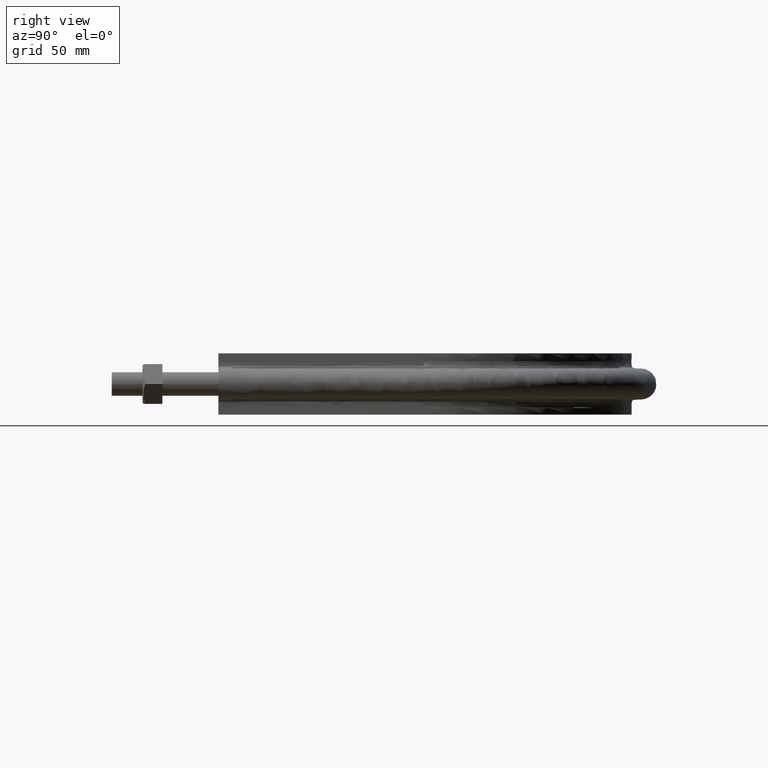
[diagram: clean part render]
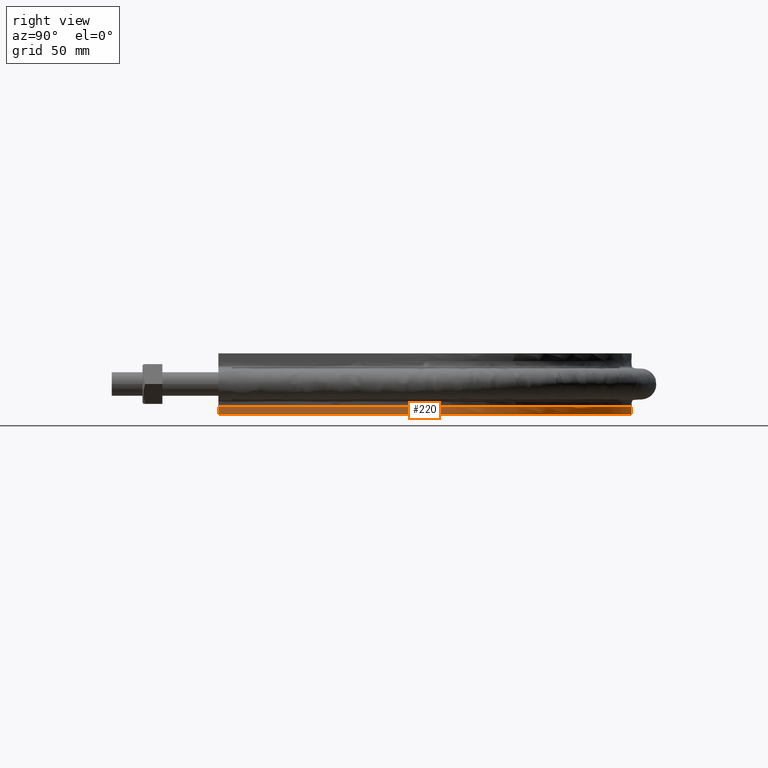
[diagram: same view with one face highlighted and labeled with its STEP entity id]
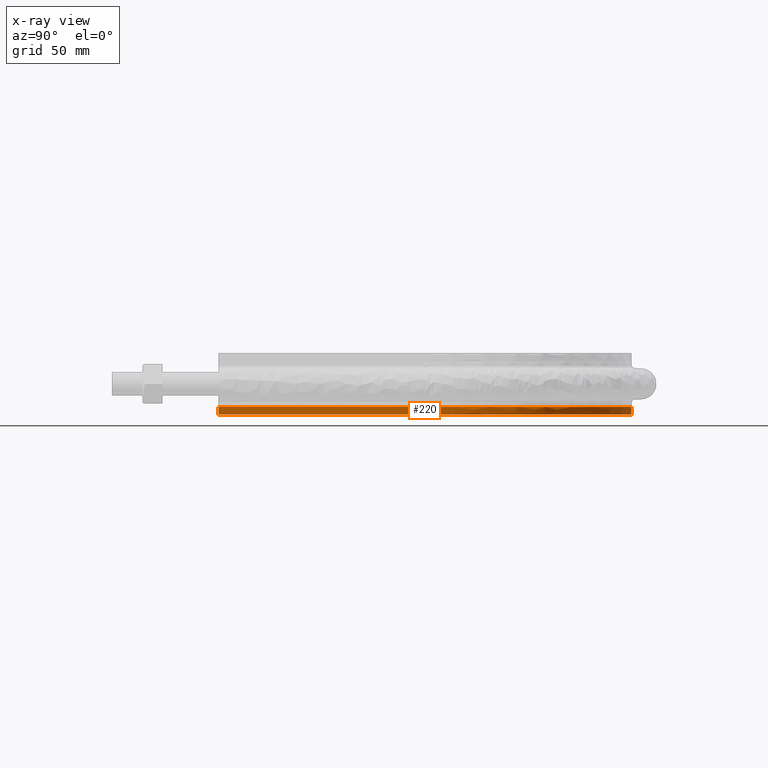
[diagram: x-ray of the same camera — body ghosted, the highlighted face saturated]
A machine part, right view. The second image highlights one B-rep face of the part: STEP entity #220.
The next image is the same camera in x-ray: the body ghosted, the highlighted face saturated — about 0% of this face is hidden behind the body in this view.
In plain terms, the highlighted face is a SurfaceOfExtrusion surface.
Its self-contained STEP definition (entity closure, byte-faithful):
#220 = ADVANCED_FACE( '', ( #262 ), #263, .T. );
#262 = FACE_OUTER_BOUND( '', #363, .T. );
#263 = SURFACE_OF_LINEAR_EXTRUSION( '', #364, #365 );
#363 = EDGE_LOOP( '', ( #1476, #1477, #1478, #1479 ) );
#364 = B_SPLINE_CURVE_WITH_KNOTS( '', 3, ( #1480, #1481, #1482, #1483, #1484, #1485, #1486, #1487, #1488, #1489, #1490, #1491, #1492, #1493, #1494, #1495, #1496, #1497, #1498, #1499, #1500, #1501, #1502, #1503, #1504, #1505, #1506, #1507, #1508, #1509, #1510, #1511, #1512, #1513, #1514, #1515, #1516, #1517, #1518, #1519, #1520, #1521, #1522, #1523, #1524, #1525, #1526, #1527, #1528, #1529, #1530, #1531, #1532, #1533, #1534, #1535, #1536, #1537, #1538, #1539, #1540, #1541, #1542, #1543, #1544, #1545, #1546, #1547, #1548, #1549, #1550, #1551, #1552, #1553, #1554, #1555, #1556, #1557, #1558, #1559, #1560, #1561, #1562, #1563, #1564, #1565, #1566, #1567, #1568, #1569, #1570, #1571, #1572 ), .UNSPECIFIED., .F., .F., ( 4, 1, 1, 2, 2, 2, 2, 2, 2, 2, 2, 2, 2, 2, 2, 2, 2, 2, 2, 2, 2, 2, 2, 2, 2, 2, 2, 2, 2, 2, 2, 2, 2, 2, 2, 2, 2, 2, 2, 2, 2, 2, 2, 2, 2, 2, 1, 4 ), ( 0.000000000000000, 0.125000000000002, 0.187500000000003, 0.191406250000003, 0.195312500000003, 0.203125000000002, 0.218750000000003, 0.250000000000003, 0.257812500000003, 0.265625000000003, 0.281250000000002, 0.312500000000002, 0.328125000000002, 0.343750000000002, 0.375000000000001, 0.390625000000001, 0.398437500000001, 0.406250000000001, 0.437500000000001, 0.453125000000001, 0.460937500000000, 0.468750000000000, 0.500000000000000, 0.515625000000000, 0.523437500000000, 0.531250000000000, 0.562500000000000, 0.578124999999999, 0.585937499999999, 0.593749999999999, 0.624999999999999, 0.656249999999999, 0.664062499999999, 0.671874999999999, 0.687499999999998, 0.718749999999998, 0.722656249999998, 0.726562499999998, 0.734374999999998, 0.749999999999998, 0.781249999999997, 0.789062499999997, 0.796874999999997, 0.804687499999997, 0.808593749999997, 0.812499999999996, 0.874999999999998, 1.00000000000000 ), .UNSPECIFIED. );
#365 = VECTOR( '', #1573, 1000.00000000000 );
#1476 = ORIENTED_EDGE( '', *, *, #1834, .T. );
#1477 = ORIENTED_EDGE( '', *, *, #1835, .T. );
#1478 = ORIENTED_EDGE( '', *, *, #1836, .F. );
#1479 = ORIENTED_EDGE( '', *, *, #1837, .F. );
#1480 = CARTESIAN_POINT( '', ( -136.950000000000, 69.5000000000001, -15.0000000000000 ) );
#1481 = CARTESIAN_POINT( '', ( -136.950000000000, 98.1083518142186, -15.0000000000000 ) );
#1482 = CARTESIAN_POINT( '', ( -136.950000000000, 141.020879535546, -15.0000000000000 ) );
#1483 = CARTESIAN_POINT( '', ( -136.950000000000, 184.827418251068, -15.0000000000000 ) );
#1484 = CARTESIAN_POINT( '', ( -136.950000000000, 200.025605152372, -15.0000000000000 ) );
#1485 = CARTESIAN_POINT( '', ( -136.950000000000, 201.813627140760, -15.0000000000000 ) );
#1486 = CARTESIAN_POINT( '', ( -136.951346114390, 202.707775042567, -15.0000000000000 ) );
#1487 = CARTESIAN_POINT( '', ( -136.920609614582, 205.386681945512, -15.0000000000000 ) );
#1488 = CARTESIAN_POINT( '', ( -136.864816667886, 207.169029468828, -15.0000000000000 ) );
#1489 = CARTESIAN_POINT( '', ( -136.593146380454, 212.505464995944, -15.0000000000000 ) );
#1490 = CARTESIAN_POINT( '', ( -136.273189661635, 216.048967525582, -15.0000000000000 ) );
#1491 = CARTESIAN_POINT( '', ( -134.901802697672, 226.637621477265, -15.0000000000000 ) );
#1492 = CARTESIAN_POINT( '', ( -133.442512350631, 233.641291170172, -15.0000000000000 ) );
#1493 = CARTESIAN_POINT( '', ( -130.901383601594, 242.322953634697, -15.0000000000000 ) );
#1494 = CARTESIAN_POINT( '', ( -130.357015832177, 244.055610275365, -15.0000000000000 ) );
#1495 = CARTESIAN_POINT( '', ( -129.193847954833, 247.513353357775, -15.0000000000000 ) );
#1496 = CARTESIAN_POINT( '', ( -128.573476846170, 249.242131151953, -15.0000000000000 ) );
#1497 = CARTESIAN_POINT( '', ( -126.618174555290, 254.362723165805, -15.0000000000000 ) );
#1498 = CARTESIAN_POINT( '', ( -125.184490197968, 257.702984774707, -15.0000000000000 ) );
#1499 = CARTESIAN_POINT( '', ( -120.505328593638, 267.510336023068, -15.0000000000000 ) );
#1500 = CARTESIAN_POINT( '', ( -116.886061102882, 273.766429658881, -15.0000000000000 ) );
#1501 = CARTESIAN_POINT( '', ( -110.711856714430, 282.729863608688, -15.0000000000000 ) );
#1502 = CARTESIAN_POINT( '', ( -108.528201325971, 285.647880339849, -15.0000000000000 ) );
#1503 = CARTESIAN_POINT( '', ( -103.904407759561, 291.334716161009, -15.0000000000000 ) );
#1504 = CARTESIAN_POINT( '', ( -101.494535344133, 294.066402872892, -15.0000000000000 ) );
#1505 = CARTESIAN_POINT( '', ( -93.9768857717446, 301.932991567950, -15.0000000000000 ) );
#1506 = CARTESIAN_POINT( '', ( -88.5810092968209, 306.739345713163, -15.0000000000000 ) );
#1507 = CARTESIAN_POINT( '', ( -79.9242816112247, 313.306932196036, -15.0000000000000 ) );
#1508 = CARTESIAN_POINT( '', ( -76.9444034133837, 315.388585548725, -15.0000000000000 ) );
#1509 = CARTESIAN_POINT( '', ( -72.3295994596727, 318.345723108325, -15.0000000000000 ) );
#1510 = CARTESIAN_POINT( '', ( -70.7649027135216, 319.304967513353, -15.0000000000000 ) );
#1511 = CARTESIAN_POINT( '', ( -67.6140063459477, 321.151291429898, -15.0000000000000 ) );
#1512 = CARTESIAN_POINT( '', ( -66.0248395654166, 322.040393152112, -15.0000000000000 ) );
#1513 = CARTESIAN_POINT( '', ( -58.0112237793678, 326.317614365294, -15.0000000000000 ) );
#1514 = CARTESIAN_POINT( '', ( -51.3838695117621, 329.201965048637, -15.0000000000000 ) );
#1515 = CARTESIAN_POINT( '', ( -41.1199306990064, 332.726783518546, -15.0000000000000 ) );
#1516 = CARTESIAN_POINT( '', ( -37.6449536795551, 333.768486983704, -15.0000000000000 ) );
#1517 = CARTESIAN_POINT( '', ( -32.3508572250080, 335.128370680882, -15.0000000000000 ) );
#1518 = CARTESIAN_POINT( '', ( -30.5711219683573, 335.548134877370, -15.0000000000000 ) );
#1519 = CARTESIAN_POINT( '', ( -26.9898806015859, 336.317593884026, -15.0000000000000 ) );
#1520 = CARTESIAN_POINT( '', ( -25.1975634552110, 336.665375332185, -15.0000000000000 ) );
#1521 = CARTESIAN_POINT( '', ( -16.2276412077899, 338.222717729931, -15.0000000000000 ) );
#1522 = CARTESIAN_POINT( '', ( -9.02523440856736, 338.892110978601, -15.0000000000000 ) );
#1523 = CARTESIAN_POINT( '', ( 1.81786937464440, 339.036051739121, -15.0000000000000 ) );
#1524 = CARTESIAN_POINT( '', ( 5.43888442947024, 338.939261125259, -15.0000000000000 ) );
#1525 = CARTESIAN_POINT( '', ( 10.8804397715058, 338.575567070277, -15.0000000000000 ) );
#1526 = CARTESIAN_POINT( '', ( 12.6959650568691, 338.417887683017, -15.0000000000000 ) );
#1527 = CARTESIAN_POINT( '', ( 16.3304010621810, 338.028795956680, -15.0000000000000 ) );
#1528 = CARTESIAN_POINT( '', ( 18.1509778757328, 337.796964222104, -15.0000000000000 ) );
#1529 = CARTESIAN_POINT( '', ( 27.1816143256275, 336.463826032725, -15.0000000000000 ) );
#1530 = CARTESIAN_POINT( '', ( 34.2390508622090, 334.839668956545, -15.0000000000000 ) );
#1531 = CARTESIAN_POINT( '', ( 44.5810778790186, 331.588595998648, -15.0000000000000 ) );
#1532 = CARTESIAN_POINT( '', ( 47.9874716560260, 330.368228980460, -15.0000000000000 ) );
#1533 = CARTESIAN_POINT( '', ( 53.0340989443394, 328.327522487613, -15.0000000000000 ) );
#1534 = CARTESIAN_POINT( '', ( 54.7057757971050, 327.612133002601, -15.0000000000000 ) );
#1535 = CARTESIAN_POINT( '', ( 58.0278931759406, 326.110472498891, -15.0000000000000 ) );
#1536 = CARTESIAN_POINT( '', ( 59.6804492387648, 325.323156348271, -15.0000000000000 ) );
#1537 = CARTESIAN_POINT( '', ( 67.8662269615211, 321.218943105620, -15.0000000000000 ) );
#1538 = CARTESIAN_POINT( '', ( 74.0672509269300, 317.457093171529, -15.0000000000000 ) );
#1539 = CARTESIAN_POINT( '', ( 85.8066697855656, 309.021264559786, -15.0000000000000 ) );
#1540 = CARTESIAN_POINT( '', ( 91.3450708111379, 304.347294323490, -15.0000000000000 ) );
#1541 = CARTESIAN_POINT( '', ( 97.8308624293475, 297.902999344751, -15.0000000000000 ) );
#1542 = CARTESIAN_POINT( '', ( 99.1063522438762, 296.583042958306, -15.0000000000000 ) );
#1543 = CARTESIAN_POINT( '', ( 101.590244963731, 293.906741637720, -15.0000000000000 ) );
#1544 = CARTESIAN_POINT( '', ( 102.801672903783, 292.547491271698, -15.0000000000000 ) );
#1545 = CARTESIAN_POINT( '', ( 106.346254323220, 288.407722078790, -15.0000000000000 ) );
#1546 = CARTESIAN_POINT( '', ( 108.589893323643, 285.565315081670, -15.0000000000000 ) );
#1547 = CARTESIAN_POINT( '', ( 114.970214089517, 276.795700236809, -15.0000000000000 ) );
#1548 = CARTESIAN_POINT( '', ( 118.759288976830, 270.628165305693, -15.0000000000000 ) );
#1549 = CARTESIAN_POINT( '', ( 122.482049801510, 263.316381079695, -15.0000000000000 ) );
#1550 = CARTESIAN_POINT( '', ( 122.888127373353, 262.498732064797, -15.0000000000000 ) );
#1551 = CARTESIAN_POINT( '', ( 123.684984798984, 260.852857558546, -15.0000000000000 ) );
#1552 = CARTESIAN_POINT( '', ( 124.076188679038, 260.023697389435, -15.0000000000000 ) );
#1553 = CARTESIAN_POINT( '', ( 125.223076035006, 257.527782870249, -15.0000000000000 ) );
#1554 = CARTESIAN_POINT( '', ( 125.951536386374, 255.853956327217, -15.0000000000000 ) );
#1555 = CARTESIAN_POINT( '', ( 128.029666807743, 250.803138776699, -15.0000000000000 ) );
#1556 = CARTESIAN_POINT( '', ( 129.272445179675, 247.396908032732, -15.0000000000000 ) );
#1557 = CARTESIAN_POINT( '', ( 132.586786070952, 237.064969568913, -15.0000000000000 ) );
#1558 = CARTESIAN_POINT( '', ( 134.247821790206, 230.026964115281, -15.0000000000000 ) );
#1559 = CARTESIAN_POINT( '', ( 135.630952375180, 221.039845429982, -15.0000000000000 ) );
#1560 = CARTESIAN_POINT( '', ( 135.872641992840, 219.232864972872, -15.0000000000000 ) );
#1561 = CARTESIAN_POINT( '', ( 136.284803757172, 215.599422844282, -15.0000000000000 ) );
#1562 = CARTESIAN_POINT( '', ( 136.455153129533, 213.772516640443, -15.0000000000000 ) );
#1563 = CARTESIAN_POINT( '', ( 136.721567786733, 210.123756924611, -15.0000000000000 ) );
#1564 = CARTESIAN_POINT( '', ( 136.818027802696, 208.298840221395, -15.0000000000000 ) );
#1565 = CARTESIAN_POINT( '', ( 136.907499245267, 205.560658472589, -15.0000000000000 ) );
#1566 = CARTESIAN_POINT( '', ( 136.928116262671, 204.647796719939, -15.0000000000000 ) );
#1567 = CARTESIAN_POINT( '', ( 136.950875956315, 202.821803321072, -15.0000000000000 ) );
#1568 = CARTESIAN_POINT( '', ( 136.950000000000, 201.908627575340, -15.0000000000000 ) );
#1569 = CARTESIAN_POINT( '', ( 136.950000000000, 186.384857445817, -15.0000000000000 ) );
#1570 = CARTESIAN_POINT( '', ( 136.950000000000, 142.553035903636, -15.0000000000000 ) );
#1571 = CARTESIAN_POINT( '', ( 136.950000000000, 98.7212143614546, -15.0000000000000 ) );
#1572 = CARTESIAN_POINT( '', ( 136.950000000000, 69.5000000000000, -15.0000000000000 ) );
#1573 = DIRECTION( '', ( -7.49830360911069E-032, -3.06151588455594E-016, -1.00000000000000 ) );
#1834 = EDGE_CURVE( '', #1910, #1911, #1912, .T. );
#1835 = EDGE_CURVE( '', #1911, #1913, #1914, .F. );
#1836 = EDGE_CURVE( '', #1915, #1913, #1916, .T. );
#1837 = EDGE_CURVE( '', #1910, #1915, #1917, .F. );
#1910 = VERTEX_POINT( '', #2160 );
#1911 = VERTEX_POINT( '', #2161 );
#1912 = B_SPLINE_CURVE_WITH_KNOTS( '', 3, ( #2162, #2163, #2164, #2165, #2166, #2167, #2168, #2169, #2170, #2171, #2172, #2173, #2174, #2175, #2176, #2177, #2178, #2179, #2180, #2181, #2182, #2183, #2184, #2185, #2186, #2187, #2188, #2189, #2190, #2191, #2192, #2193, #2194, #2195, #2196, #2197, #2198, #2199, #2200, #2201, #2202, #2203, #2204, #2205, #2206, #2207, #2208, #2209, #2210, #2211, #2212, #2213, #2214, #2215, #2216, #2217, #2218, #2219, #2220, #2221, #2222, #2223, #2224, #2225, #2226, #2227, #2228, #2229, #2230, #2231, #2232, #2233, #2234, #2235, #2236, #2237, #2238, #2239, #2240, #2241, #2242, #2243, #2244, #2245, #2246, #2247, #2248, #2249, #2250, #2251, #2252, #2253, #2254 ), .UNSPECIFIED., .F., .F., ( 4, 1, 1, 2, 2, 2, 2, 2, 2, 2, 2, 2, 2, 2, 2, 2, 2, 2, 2, 2, 2, 2, 2, 2, 2, 2, 2, 2, 2, 2, 2, 2, 2, 2, 2, 2, 2, 2, 2, 2, 2, 2, 2, 2, 2, 2, 1, 4 ), ( 0.000000000000000, 0.125000000000002, 0.187500000000003, 0.191406250000003, 0.195312500000003, 0.203125000000002, 0.218750000000003, 0.250000000000003, 0.257812500000003, 0.265625000000003, 0.281250000000002, 0.312500000000002, 0.328125000000002, 0.343750000000002, 0.375000000000001, 0.390625000000001, 0.398437500000001, 0.406250000000001, 0.437500000000001, 0.453125000000001, 0.460937500000000, 0.468750000000000, 0.500000000000000, 0.515625000000000, 0.523437500000000, 0.531250000000000, 0.562500000000000, 0.578124999999999, 0.585937499999999, 0.593749999999999, 0.624999999999999, 0.656249999999999, 0.664062499999999, 0.671874999999999, 0.687499999999998, 0.718749999999998, 0.722656249999998, 0.726562499999998, 0.734374999999998, 0.749999999999998, 0.781249999999997, 0.789062499999997, 0.796874999999997, 0.804687499999997, 0.808593749999997, 0.812499999999996, 0.874999999999998, 1.00000000000000 ), .UNSPECIFIED. );
#1913 = VERTEX_POINT( '', #2255 );
#1914 = LINE( '', #2256, #2257 );
#1915 = VERTEX_POINT( '', #2258 );
#1916 = B_SPLINE_CURVE_WITH_KNOTS( '', 3, ( #2259, #2260, #2261, #2262, #2263, #2264, #2265, #2266, #2267, #2268, #2269, #2270, #2271, #2272, #2273, #2274, #2275, #2276, #2277, #2278, #2279, #2280, #2281, #2282, #2283, #2284, #2285, #2286, #2287, #2288, #2289, #2290, #2291, #2292, #2293, #2294, #2295, #2296, #2297, #2298, #2299, #2300, #2301, #2302, #2303, #2304, #2305, #2306, #2307, #2308, #2309, #2310, #2311, #2312, #2313, #2314, #2315, #2316, #2317, #2318, #2319, #2320, #2321, #2322, #2323, #2324, #2325, #2326, #2327, #2328, #2329, #2330, #2331, #2332, #2333, #2334, #2335, #2336, #2337, #2338, #2339, #2340, #2341, #2342, #2343, #2344, #2345, #2346, #2347, #2348, #2349, #2350, #2351, #2352, #2353, #2354, #2355, #2356, #2357, #2358, #2359, #2360, #2361, #2362, #2363, #2364, #2365 ), .UNSPECIFIED., .F., .F., ( 4, 1, 2, 2, 2, 2, 2, 2, 2, 2, 2, 2, 2, 2, 2, 2, 2, 2, 2, 2, 2, 2, 2, 2, 2, 2, 2, 2, 2, 2, 2, 2, 2, 2, 2, 1, 2, 2, 2, 2, 2, 2, 2, 2, 2, 2, 2, 2, 2, 2, 2, 2, 2, 1, 4 ), ( 1.38777878078145E-017, 0.0874256844655920, 0.131138526698388, 0.133870579337938, 0.136602631977487, 0.142066737256587, 0.152994947814785, 0.174851368931183, 0.180315474210282, 0.183047526849832, 0.185779579489381, 0.196707790047579, 0.218564211163976, 0.229492421722174, 0.232224474361723, 0.234956527001273, 0.240420632280372, 0.262277053396767, 0.273205263954965, 0.275937316594514, 0.278669369234064, 0.284133474513163, 0.305989895629558, 0.316918106187756, 0.322382211466855, 0.325114264106404, 0.327846316745954, 0.349702737862350, 0.360630948420547, 0.366095053699646, 0.368827106339196, 0.371559158978745, 0.393415580095141, 0.415272001211536, 0.418004053851086, 0.420736106490635, 0.426200211769734, 0.437128422327932, 0.458984843444328, 0.461716896083877, 0.464448948723426, 0.469913054002525, 0.480841264560722, 0.502697685677117, 0.508161790956216, 0.513625896235315, 0.524554106793512, 0.546410527909907, 0.551874633189006, 0.557338738468105, 0.562802843747204, 0.565534896386753, 0.568266949026303, 0.611979791259093, 0.699405475724673 ), .UNSPECIFIED. );
#1917 = LINE( '', #2366, #2367 );
#2160 = CARTESIAN_POINT( '', ( -136.950000000000, 69.5000000000001, -15.0000000000000 ) );
#2161 = CARTESIAN_POINT( '', ( 136.950000000000, 69.5000000000001, -15.0000000000000 ) );
#2162 = CARTESIAN_POINT( '', ( -136.950000000000, 69.5000000000001, -15.0000000000000 ) );
#2163 = CARTESIAN_POINT( '', ( -136.950000000000, 98.1083518142186, -15.0000000000000 ) );
#2164 = CARTESIAN_POINT( '', ( -136.950000000000, 141.020879535546, -15.0000000000000 ) );
#2165 = CARTESIAN_POINT( '', ( -136.950000000000, 184.827418251068, -15.0000000000000 ) );
#2166 = CARTESIAN_POINT( '', ( -136.950000000000, 200.025605152372, -15.0000000000000 ) );
#2167 = CARTESIAN_POINT( '', ( -136.950000000000, 201.813627140760, -15.0000000000000 ) );
#2168 = CARTESIAN_POINT( '', ( -136.951346114390, 202.707775042567, -15.0000000000000 ) );
#2169 = CARTESIAN_POINT( '', ( -136.920609614582, 205.386681945512, -15.0000000000000 ) );
#2170 = CARTESIAN_POINT( '', ( -136.864816667886, 207.169029468828, -15.0000000000000 ) );
#2171 = CARTESIAN_POINT( '', ( -136.593146380454, 212.505464995944, -15.0000000000000 ) );
#2172 = CARTESIAN_POINT( '', ( -136.273189661635, 216.048967525582, -15.0000000000000 ) );
#2173 = CARTESIAN_POINT( '', ( -134.901802697672, 226.637621477265, -15.0000000000000 ) );
#2174 = CARTESIAN_POINT( '', ( -133.442512350631, 233.641291170172, -15.0000000000000 ) );
#2175 = CARTESIAN_POINT( '', ( -130.901383601594, 242.322953634697, -15.0000000000000 ) );
#2176 = CARTESIAN_POINT( '', ( -130.357015832177, 244.055610275365, -15.0000000000000 ) );
#2177 = CARTESIAN_POINT( '', ( -129.193847954833, 247.513353357775, -15.0000000000000 ) );
#2178 = CARTESIAN_POINT( '', ( -128.573476846170, 249.242131151953, -15.0000000000000 ) );
#2179 = CARTESIAN_POINT( '', ( -126.618174555290, 254.362723165805, -15.0000000000000 ) );
#2180 = CARTESIAN_POINT( '', ( -125.184490197968, 257.702984774707, -15.0000000000000 ) );
#2181 = CARTESIAN_POINT( '', ( -120.505328593638, 267.510336023068, -15.0000000000000 ) );
#2182 = CARTESIAN_POINT( '', ( -116.886061102882, 273.766429658881, -15.0000000000000 ) );
#2183 = CARTESIAN_POINT( '', ( -110.711856714430, 282.729863608688, -15.0000000000000 ) );
#2184 = CARTESIAN_POINT( '', ( -108.528201325971, 285.647880339849, -15.0000000000000 ) );
#2185 = CARTESIAN_POINT( '', ( -103.904407759561, 291.334716161009, -15.0000000000000 ) );
#2186 = CARTESIAN_POINT( '', ( -101.494535344133, 294.066402872892, -15.0000000000000 ) );
#2187 = CARTESIAN_POINT( '', ( -93.9768857717446, 301.932991567950, -15.0000000000000 ) );
#2188 = CARTESIAN_POINT( '', ( -88.5810092968209, 306.739345713163, -15.0000000000000 ) );
#2189 = CARTESIAN_POINT( '', ( -79.9242816112247, 313.306932196036, -15.0000000000000 ) );
#2190 = CARTESIAN_POINT( '', ( -76.9444034133837, 315.388585548725, -15.0000000000000 ) );
#2191 = CARTESIAN_POINT( '', ( -72.3295994596727, 318.345723108325, -15.0000000000000 ) );
#2192 = CARTESIAN_POINT( '', ( -70.7649027135216, 319.304967513353, -15.0000000000000 ) );
#2193 = CARTESIAN_POINT( '', ( -67.6140063459477, 321.151291429898, -15.0000000000000 ) );
#2194 = CARTESIAN_POINT( '', ( -66.0248395654166, 322.040393152112, -15.0000000000000 ) );
#2195 = CARTESIAN_POINT( '', ( -58.0112237793678, 326.317614365294, -15.0000000000000 ) );
#2196 = CARTESIAN_POINT( '', ( -51.3838695117621, 329.201965048637, -15.0000000000000 ) );
#2197 = CARTESIAN_POINT( '', ( -41.1199306990064, 332.726783518546, -15.0000000000000 ) );
#2198 = CARTESIAN_POINT( '', ( -37.6449536795551, 333.768486983704, -15.0000000000000 ) );
#2199 = CARTESIAN_POINT( '', ( -32.3508572250080, 335.128370680882, -15.0000000000000 ) );
#2200 = CARTESIAN_POINT( '', ( -30.5711219683573, 335.548134877370, -15.0000000000000 ) );
#2201 = CARTESIAN_POINT( '', ( -26.9898806015859, 336.317593884026, -15.0000000000000 ) );
#2202 = CARTESIAN_POINT( '', ( -25.1975634552110, 336.665375332185, -15.0000000000000 ) );
#2203 = CARTESIAN_POINT( '', ( -16.2276412077899, 338.222717729931, -15.0000000000000 ) );
#2204 = CARTESIAN_POINT( '', ( -9.02523440856736, 338.892110978601, -15.0000000000000 ) );
#2205 = CARTESIAN_POINT( '', ( 1.81786937464440, 339.036051739121, -15.0000000000000 ) );
#2206 = CARTESIAN_POINT( '', ( 5.43888442947024, 338.939261125259, -15.0000000000000 ) );
#2207 = CARTESIAN_POINT( '', ( 10.8804397715058, 338.575567070277, -15.0000000000000 ) );
#2208 = CARTESIAN_POINT( '', ( 12.6959650568691, 338.417887683017, -15.0000000000000 ) );
#2209 = CARTESIAN_POINT( '', ( 16.3304010621810, 338.028795956680, -15.0000000000000 ) );
#2210 = CARTESIAN_POINT( '', ( 18.1509778757328, 337.796964222104, -15.0000000000000 ) );
#2211 = CARTESIAN_POINT( '', ( 27.1816143256275, 336.463826032725, -15.0000000000000 ) );
#2212 = CARTESIAN_POINT( '', ( 34.2390508622090, 334.839668956545, -15.0000000000000 ) );
#2213 = CARTESIAN_POINT( '', ( 44.5810778790186, 331.588595998648, -15.0000000000000 ) );
#2214 = CARTESIAN_POINT( '', ( 47.9874716560260, 330.368228980460, -15.0000000000000 ) );
#2215 = CARTESIAN_POINT( '', ( 53.0340989443394, 328.327522487613, -15.0000000000000 ) );
#2216 = CARTESIAN_POINT( '', ( 54.7057757971050, 327.612133002601, -15.0000000000000 ) );
#2217 = CARTESIAN_POINT( '', ( 58.0278931759406, 326.110472498891, -15.0000000000000 ) );
#2218 = CARTESIAN_POINT( '', ( 59.6804492387648, 325.323156348271, -15.0000000000000 ) );
#2219 = CARTESIAN_POINT( '', ( 67.8662269615211, 321.218943105620, -15.0000000000000 ) );
#2220 = CARTESIAN_POINT( '', ( 74.0672509269300, 317.457093171529, -15.0000000000000 ) );
#2221 = CARTESIAN_POINT( '', ( 85.8066697855656, 309.021264559786, -15.0000000000000 ) );
#2222 = CARTESIAN_POINT( '', ( 91.3450708111379, 304.347294323490, -15.0000000000000 ) );
#2223 = CARTESIAN_POINT( '', ( 97.8308624293475, 297.902999344751, -15.0000000000000 ) );
#2224 = CARTESIAN_POINT( '', ( 99.1063522438762, 296.583042958306, -15.0000000000000 ) );
#2225 = CARTESIAN_POINT( '', ( 101.590244963731, 293.906741637720, -15.0000000000000 ) );
#2226 = CARTESIAN_POINT( '', ( 102.801672903783, 292.547491271698, -15.0000000000000 ) );
#2227 = CARTESIAN_POINT( '', ( 106.346254323220, 288.407722078790, -15.0000000000000 ) );
#2228 = CARTESIAN_POINT( '', ( 108.589893323643, 285.565315081670, -15.0000000000000 ) );
#2229 = CARTESIAN_POINT( '', ( 114.970214089517, 276.795700236809, -15.0000000000000 ) );
#2230 = CARTESIAN_POINT( '', ( 118.759288976830, 270.628165305693, -15.0000000000000 ) );
#2231 = CARTESIAN_POINT( '', ( 122.482049801510, 263.316381079695, -15.0000000000000 ) );
#2232 = CARTESIAN_POINT( '', ( 122.888127373353, 262.498732064797, -15.0000000000000 ) );
#2233 = CARTESIAN_POINT( '', ( 123.684984798984, 260.852857558546, -15.0000000000000 ) );
#2234 = CARTESIAN_POINT( '', ( 124.076188679038, 260.023697389435, -15.0000000000000 ) );
#2235 = CARTESIAN_POINT( '', ( 125.223076035006, 257.527782870249, -15.0000000000000 ) );
#2236 = CARTESIAN_POINT( '', ( 125.951536386374, 255.853956327217, -15.0000000000000 ) );
#2237 = CARTESIAN_POINT( '', ( 128.029666807743, 250.803138776699, -15.0000000000000 ) );
#2238 = CARTESIAN_POINT( '', ( 129.272445179675, 247.396908032732, -15.0000000000000 ) );
#2239 = CARTESIAN_POINT( '', ( 132.586786070952, 237.064969568913, -15.0000000000000 ) );
#2240 = CARTESIAN_POINT( '', ( 134.247821790206, 230.026964115281, -15.0000000000000 ) );
#2241 = CARTESIAN_POINT( '', ( 135.630952375180, 221.039845429982, -15.0000000000000 ) );
#2242 = CARTESIAN_POINT( '', ( 135.872641992840, 219.232864972872, -15.0000000000000 ) );
#2243 = CARTESIAN_POINT( '', ( 136.284803757172, 215.599422844282, -15.0000000000000 ) );
#2244 = CARTESIAN_POINT( '', ( 136.455153129533, 213.772516640443, -15.0000000000000 ) );
#2245 = CARTESIAN_POINT( '', ( 136.721567786733, 210.123756924611, -15.0000000000000 ) );
#2246 = CARTESIAN_POINT( '', ( 136.818027802696, 208.298840221395, -15.0000000000000 ) );
#2247 = CARTESIAN_POINT( '', ( 136.907499245267, 205.560658472589, -15.0000000000000 ) );
#2248 = CARTESIAN_POINT( '', ( 136.928116262671, 204.647796719939, -15.0000000000000 ) );
#2249 = CARTESIAN_POINT( '', ( 136.950875956315, 202.821803321072, -15.0000000000000 ) );
#2250 = CARTESIAN_POINT( '', ( 136.950000000000, 201.908627575340, -15.0000000000000 ) );
#2251 = CARTESIAN_POINT( '', ( 136.950000000000, 186.384857445817, -15.0000000000000 ) );
#2252 = CARTESIAN_POINT( '', ( 136.950000000000, 142.553035903636, -15.0000000000000 ) );
#2253 = CARTESIAN_POINT( '', ( 136.950000000000, 98.7212143614546, -15.0000000000000 ) );
#2254 = CARTESIAN_POINT( '', ( 136.950000000000, 69.5000000000000, -15.0000000000000 ) );
#2255 = CARTESIAN_POINT( '', ( 136.950000000000, 69.5000000000000, -20.0000000000000 ) );
#2256 = CARTESIAN_POINT( '', ( 136.950000000000, 69.5000000000001, 15.0000000000000 ) );
#2257 = VECTOR( '', #2776, 1000.00000000000 );
#2258 = CARTESIAN_POINT( '', ( -136.950000000000, 69.5000000000001, -20.0000000000000 ) );
#2259 = CARTESIAN_POINT( '', ( -136.950000000000, 69.5000000000001, -20.0000000000000 ) );
#2260 = CARTESIAN_POINT( '', ( -136.950000000000, 98.6419002480975, -20.0000000000000 ) );
#2261 = CARTESIAN_POINT( '', ( -136.950000000000, 142.354750620244, -20.0000000000000 ) );
#2262 = CARTESIAN_POINT( '', ( -136.949999999999, 186.067600992390, -20.0000000000000 ) );
#2263 = CARTESIAN_POINT( '', ( -136.950000000000, 201.549235499191, -20.0000000000000 ) );
#2264 = CARTESIAN_POINT( '', ( -136.952005766823, 202.459921105957, -20.0000000000000 ) );
#2265 = CARTESIAN_POINT( '', ( -136.934979206279, 204.281279481060, -20.0000000000000 ) );
#2266 = CARTESIAN_POINT( '', ( -136.916553871832, 205.191952619813, -20.0000000000000 ) );
#2267 = CARTESIAN_POINT( '', ( -136.834753701177, 207.923955849785, -20.0000000000000 ) );
#2268 = CARTESIAN_POINT( '', ( -136.743599783762, 209.741272047872, -20.0000000000000 ) );
#2269 = CARTESIAN_POINT( '', ( -136.363495553162, 215.166484778744, -20.0000000000000 ) );
#2270 = CARTESIAN_POINT( '', ( -135.967488703048, 218.753870458485, -20.0000000000000 ) );
#2271 = CARTESIAN_POINT( '', ( -134.367551969832, 229.431038801510, -20.0000000000000 ) );
#2272 = CARTESIAN_POINT( '', ( -132.750553866293, 236.435595074196, -20.0000000000000 ) );
#2273 = CARTESIAN_POINT( '', ( -130.033489035348, 245.047725779315, -20.0000000000000 ) );
#2274 = CARTESIAN_POINT( '', ( -129.454886141076, 246.762891350759, -20.0000000000000 ) );
#2275 = CARTESIAN_POINT( '', ( -128.533317502651, 249.324567410147, -20.0000000000000 ) );
#2276 = CARTESIAN_POINT( '', ( -128.217212893148, 250.176620027553, -20.0000000000000 ) );
#2277 = CARTESIAN_POINT( '', ( -127.566740219218, 251.876957051046, -20.0000000000000 ) );
#2278 = CARTESIAN_POINT( '', ( -127.232398800355, 252.725180838083, -20.0000000000000 ) );
#2279 = CARTESIAN_POINT( '', ( -125.522807242116, 256.937555990541, -20.0000000000000 ) );
#2280 = CARTESIAN_POINT( '', ( -124.027890382200, 260.231015655090, -20.0000000000000 ) );
#2281 = CARTESIAN_POINT( '', ( -119.177772488663, 269.891903517813, -20.0000000000000 ) );
#2282 = CARTESIAN_POINT( '', ( -115.456951462215, 276.039688790400, -20.0000000000000 ) );
#2283 = CARTESIAN_POINT( '', ( -109.152951019671, 284.827169774977, -20.0000000000000 ) );
#2284 = CARTESIAN_POINT( '', ( -106.930050833053, 287.683299996958, -20.0000000000000 ) );
#2285 = CARTESIAN_POINT( '', ( -103.994442146735, 291.159156375517, -20.0000000000000 ) );
#2286 = CARTESIAN_POINT( '', ( -103.399206220781, 291.849830869776, -20.0000000000000 ) );
#2287 = CARTESIAN_POINT( '', ( -102.198265091276, 293.215468669275, -20.0000000000000 ) );
#2288 = CARTESIAN_POINT( '', ( -101.591920700931, 293.891203542518, -20.0000000000000 ) );
#2289 = CARTESIAN_POINT( '', ( -99.7553846231902, 295.897299082129, -20.0000000000000 ) );
#2290 = CARTESIAN_POINT( '', ( -98.5077032633133, 297.206566629286, -20.0000000000000 ) );
#2291 = CARTESIAN_POINT( '', ( -92.1539858602997, 303.613835991368, -20.0000000000000 ) );
#2292 = CARTESIAN_POINT( '', ( -86.7024715106608, 308.295179626358, -20.0000000000000 ) );
#2293 = CARTESIAN_POINT( '', ( -77.9891669345064, 314.670721620162, -20.0000000000000 ) );
#2294 = CARTESIAN_POINT( '', ( -74.9946413234060, 316.687249879648, -20.0000000000000 ) );
#2295 = CARTESIAN_POINT( '', ( -71.1363767592708, 319.069086719332, -20.0000000000000 ) );
#2296 = CARTESIAN_POINT( '', ( -70.3589796436348, 319.538526390095, -20.0000000000000 ) );
#2297 = CARTESIAN_POINT( '', ( -68.7925101038824, 320.463324926285, -20.0000000000000 ) );
#2298 = CARTESIAN_POINT( '', ( -68.0028416365663, 320.918994503190, -20.0000000000000 ) );
#2299 = CARTESIAN_POINT( '', ( -65.6265150792902, 322.258978990773, -20.0000000000000 ) );
#2300 = CARTESIAN_POINT( '', ( -64.0295971988741, 323.118030590870, -20.0000000000000 ) );
#2301 = CARTESIAN_POINT( '', ( -55.9824089667684, 327.244365806939, -20.0000000000000 ) );
#2302 = CARTESIAN_POINT( '', ( -49.3439512001537, 330.003826159947, -20.0000000000000 ) );
#2303 = CARTESIAN_POINT( '', ( -39.0910082444983, 333.346268295589, -20.0000000000000 ) );
#2304 = CARTESIAN_POINT( '', ( -35.6241551653288, 334.327634953125, -20.0000000000000 ) );
#2305 = CARTESIAN_POINT( '', ( -30.3492784457225, 335.598384851549, -20.0000000000000 ) );
#2306 = CARTESIAN_POINT( '', ( -28.5785337099373, 335.988365122304, -20.0000000000000 ) );
#2307 = CARTESIAN_POINT( '', ( -25.9034309357598, 336.522102744637, -20.0000000000000 ) );
#2308 = CARTESIAN_POINT( '', ( -25.0077107436046, 336.691611247168, -20.0000000000000 ) );
#2309 = CARTESIAN_POINT( '', ( -23.2172138820088, 337.012112274077, -20.0000000000000 ) );
#2310 = CARTESIAN_POINT( '', ( -22.3218036874214, 337.163270419115, -20.0000000000000 ) );
#2311 = CARTESIAN_POINT( '', ( -14.2616746941679, 338.442909678168, -20.0000000000000 ) );
#2312 = CARTESIAN_POINT( '', ( -7.08688203431526, 339.005162357812, -20.0000000000000 ) );
#2313 = CARTESIAN_POINT( '', ( 3.69045053044869, 338.997356057590, -20.0000000000000 ) );
#2314 = CARTESIAN_POINT( '', ( 7.28543714268980, 338.851850186394, -20.0000000000000 ) );
#2315 = CARTESIAN_POINT( '', ( 12.6817359396741, 338.418941046074, -20.0000000000000 ) );
#2316 = CARTESIAN_POINT( '', ( 14.4811397915355, 338.238800753868, -20.0000000000000 ) );
#2317 = CARTESIAN_POINT( '', ( 17.1812121944216, 337.914258555030, -20.0000000000000 ) );
#2318 = CARTESIAN_POINT( '', ( 18.0813968219193, 337.797056870436, -20.0000000000000 ) );
#2319 = CARTESIAN_POINT( '', ( 19.8820902819457, 337.544430686409, -20.0000000000000 ) );
#2320 = CARTESIAN_POINT( '', ( 20.7835449490405, 337.408813108141, -20.0000000000000 ) );
#2321 = CARTESIAN_POINT( '', ( 28.8670965883813, 336.111328549364, -20.0000000000000 ) );
#2322 = CARTESIAN_POINT( '', ( 35.8703135520973, 334.406800400232, -20.0000000000000 ) );
#2323 = CARTESIAN_POINT( '', ( 49.5251538415538, 329.933849723644, -20.0000000000000 ) );
#2324 = CARTESIAN_POINT( '', ( 56.1748232267833, 327.159514727642, -20.0000000000000 ) );
#2325 = CARTESIAN_POINT( '', ( 63.4492399728082, 323.413652350480, -20.0000000000000 ) );
#2326 = CARTESIAN_POINT( '', ( 64.2555412528504, 322.988297906812, -20.0000000000000 ) );
#2327 = CARTESIAN_POINT( '', ( 65.8566175141632, 322.123190874317, -20.0000000000000 ) );
#2328 = CARTESIAN_POINT( '', ( 68.2414579242991, 320.803750954361, -20.0000000000000 ) );
#2329 = CARTESIAN_POINT( '', ( 70.5763589403747, 319.419469626311, -20.0000000000000 ) );
#2330 = CARTESIAN_POINT( '', ( 75.1805857318925, 316.565763947977, -20.0000000000000 ) );
#2331 = CARTESIAN_POINT( '', ( 78.1627035340807, 314.549856366452, -20.0000000000000 ) );
#2332 = CARTESIAN_POINT( '', ( 86.8543207620393, 308.171383663367, -20.0000000000000 ) );
#2333 = CARTESIAN_POINT( '', ( 92.3077229888376, 303.476301431765, -20.0000000000000 ) );
#2334 = CARTESIAN_POINT( '', ( 98.0418417248402, 297.673728261727, -20.0000000000000 ) );
#2335 = CARTESIAN_POINT( '', ( 98.6733697505284, 297.021731690664, -20.0000000000000 ) );
#2336 = CARTESIAN_POINT( '', ( 99.9251833237752, 295.703141292680, -20.0000000000000 ) );
#2337 = CARTESIAN_POINT( '', ( 100.546136743136, 295.035752086238, -20.0000000000000 ) );
#2338 = CARTESIAN_POINT( '', ( 102.386046552856, 293.018007311469, -20.0000000000000 ) );
#2339 = CARTESIAN_POINT( '', ( 103.581668710415, 291.652670943038, -20.0000000000000 ) );
#2340 = CARTESIAN_POINT( '', ( 107.077810366195, 287.497593093919, -20.0000000000000 ) );
#2341 = CARTESIAN_POINT( '', ( 109.287409665403, 284.648655660809, -20.0000000000000 ) );
#2342 = CARTESIAN_POINT( '', ( 115.563663674952, 275.872310524428, -20.0000000000000 ) );
#2343 = CARTESIAN_POINT( '', ( 119.278439319529, 269.715802833906, -20.0000000000000 ) );
#2344 = CARTESIAN_POINT( '', ( 123.322162063998, 261.629687512519, -20.0000000000000 ) );
#2345 = CARTESIAN_POINT( '', ( 124.100657851929, 259.992770208302, -20.0000000000000 ) );
#2346 = CARTESIAN_POINT( '', ( 125.595826737251, 256.678684334611, -20.0000000000000 ) );
#2347 = CARTESIAN_POINT( '', ( 126.312684101755, 255.000403133012, -20.0000000000000 ) );
#2348 = CARTESIAN_POINT( '', ( 128.350441665646, 249.950404789003, -20.0000000000000 ) );
#2349 = CARTESIAN_POINT( '', ( 129.565681668817, 246.548771227835, -20.0000000000000 ) );
#2350 = CARTESIAN_POINT( '', ( 132.799201309553, 236.243261059046, -20.0000000000000 ) );
#2351 = CARTESIAN_POINT( '', ( 134.406489655848, 229.239070076662, -20.0000000000000 ) );
#2352 = CARTESIAN_POINT( '', ( 135.730368078418, 220.316580552520, -20.0000000000000 ) );
#2353 = CARTESIAN_POINT( '', ( 135.960596827439, 218.523650463586, -20.0000000000000 ) );
#2354 = CARTESIAN_POINT( '', ( 136.350715609652, 214.920622076926, -20.0000000000000 ) );
#2355 = CARTESIAN_POINT( '', ( 136.510773884774, 213.109390090215, -20.0000000000000 ) );
#2356 = CARTESIAN_POINT( '', ( 136.758613068843, 209.474281669830, -20.0000000000000 ) );
#2357 = CARTESIAN_POINT( '', ( 136.846031799769, 207.656639207717, -20.0000000000000 ) );
#2358 = CARTESIAN_POINT( '', ( 136.922369077726, 204.930043041098, -20.0000000000000 ) );
#2359 = CARTESIAN_POINT( '', ( 136.939052762000, 204.021156467247, -20.0000000000000 ) );
#2360 = CARTESIAN_POINT( '', ( 136.951967908155, 202.203333870084, -20.0000000000000 ) );
#2361 = CARTESIAN_POINT( '', ( 136.950000000000, 201.294402200341, -20.0000000000000 ) );
#2362 = CARTESIAN_POINT( '', ( 136.950000000000, 185.842644700991, -20.0000000000000 ) );
#2363 = CARTESIAN_POINT( '', ( 136.950000000000, 142.214152938119, -20.0000000000000 ) );
#2364 = CARTESIAN_POINT( '', ( 136.950000000000, 98.5856611752478, -20.0000000000000 ) );
#2365 = CARTESIAN_POINT( '', ( 136.950000000000, 69.4999999999999, -20.0000000000000 ) );
#2366 = CARTESIAN_POINT( '', ( -136.950000000000, 69.5000000000001, 15.0000000000000 ) );
#2367 = VECTOR( '', #2777, 1000.00000000000 );
#2776 = DIRECTION( '', ( 0.000000000000000, 0.000000000000000, 1.00000000000000 ) );
#2777 = DIRECTION( '', ( 0.000000000000000, 0.000000000000000, 1.00000000000000 ) );